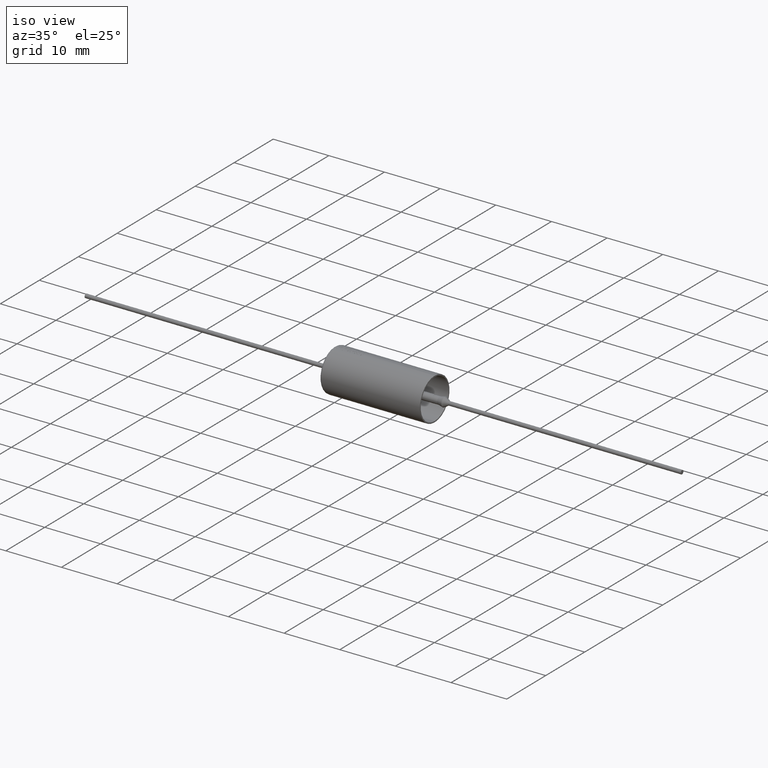
[diagram: clean part render]
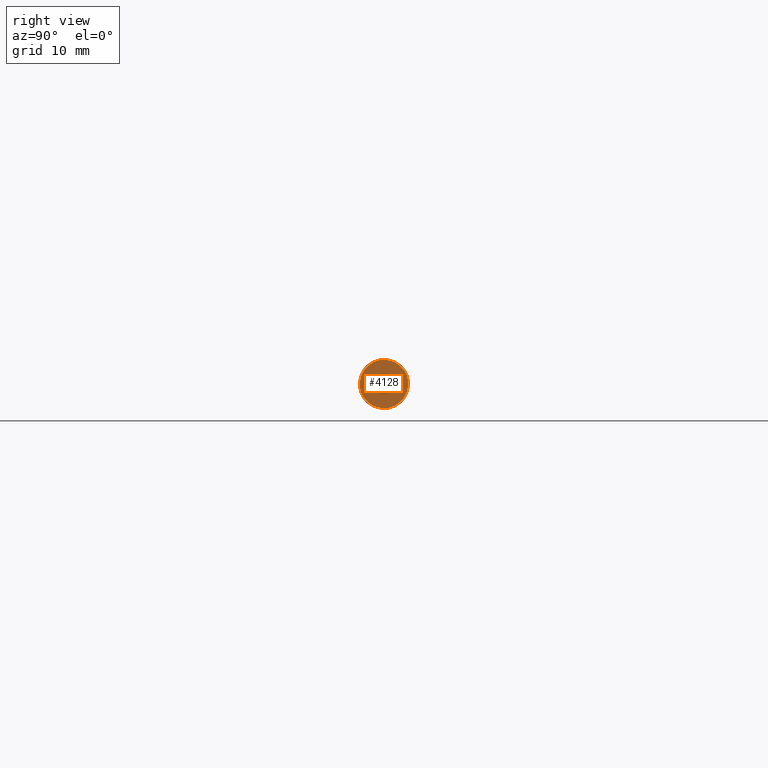
[diagram: tour spotlight — one face highlighted and labeled with its STEP entity id]
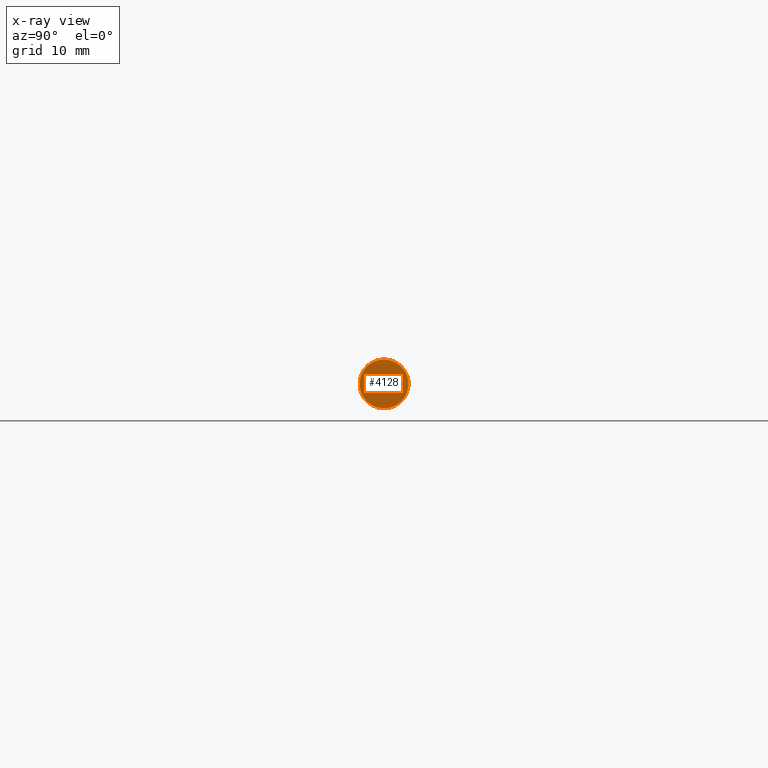
[diagram: x-ray of the same camera — body ghosted, this tour face saturated]
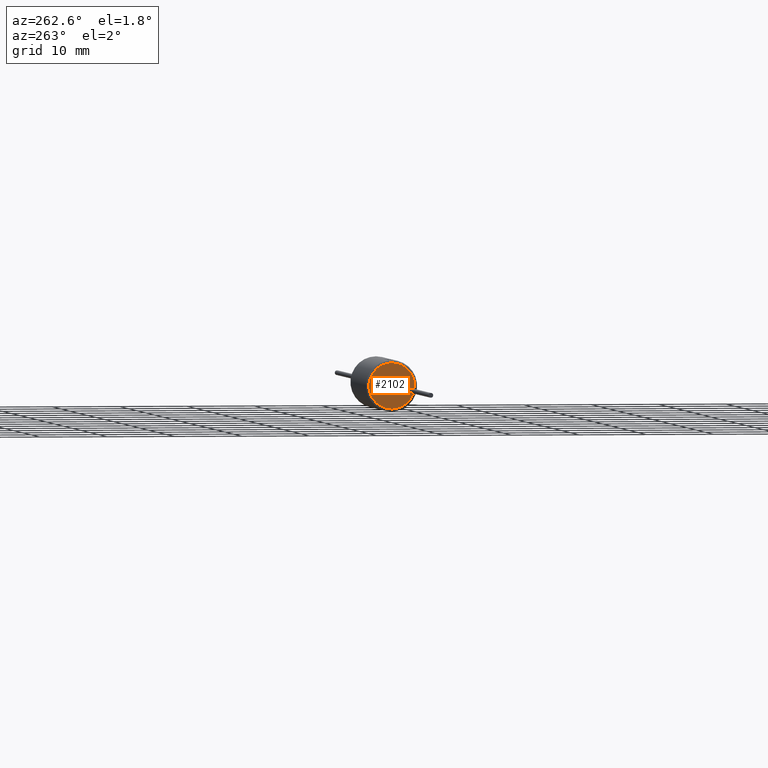
[diagram: tour spotlight — one face highlighted and labeled with its STEP entity id]
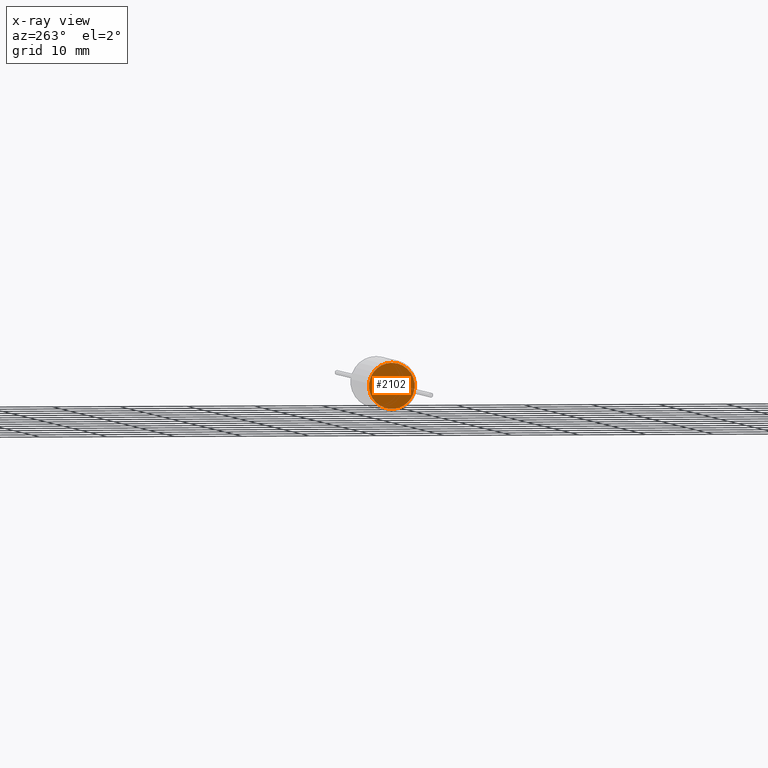
[diagram: x-ray of the same camera — body ghosted, this tour face saturated]
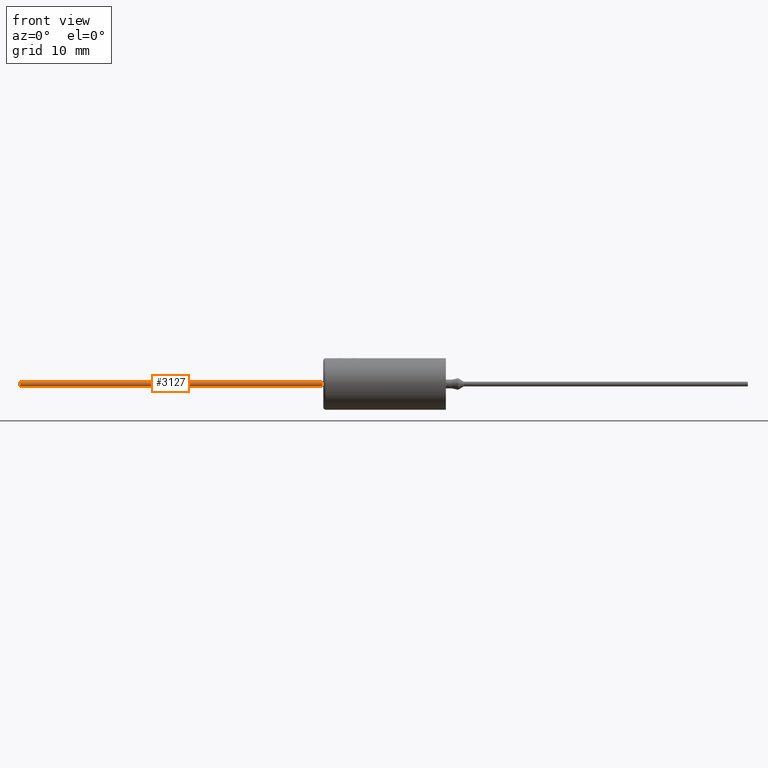
[diagram: tour spotlight — one face highlighted and labeled with its STEP entity id]
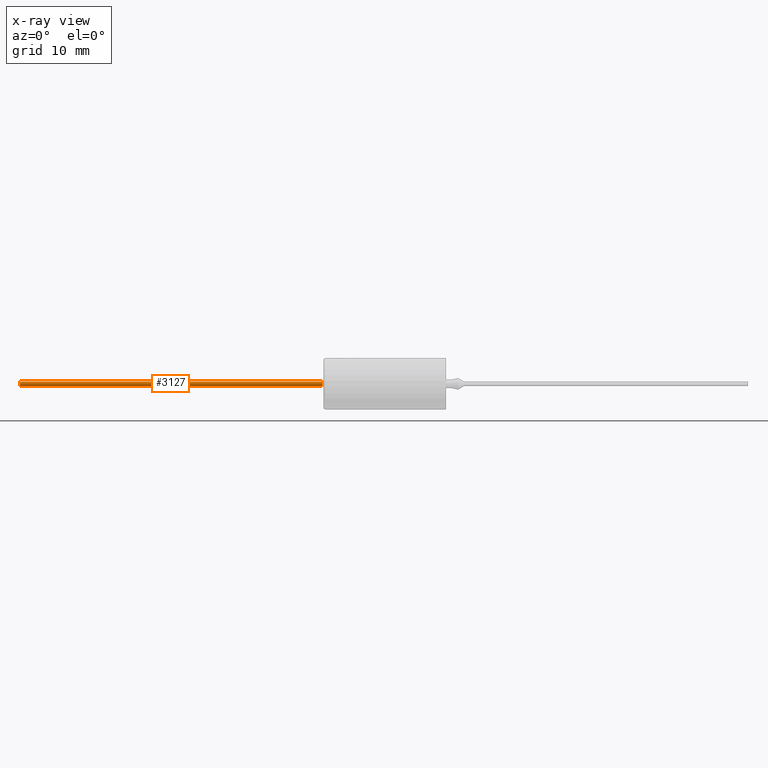
[diagram: x-ray of the same camera — body ghosted, this tour face saturated]
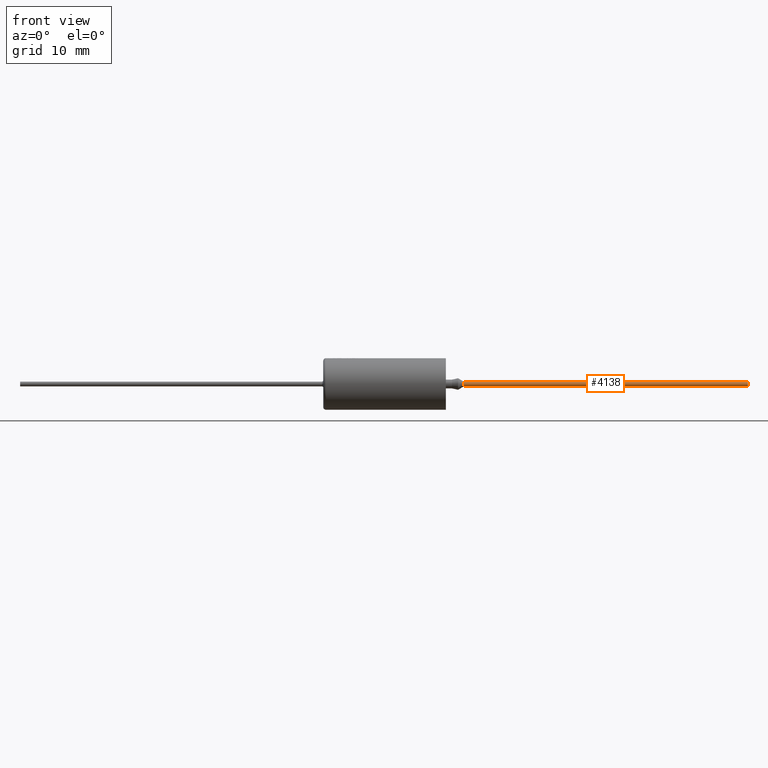
[diagram: tour spotlight — one face highlighted and labeled with its STEP entity id]
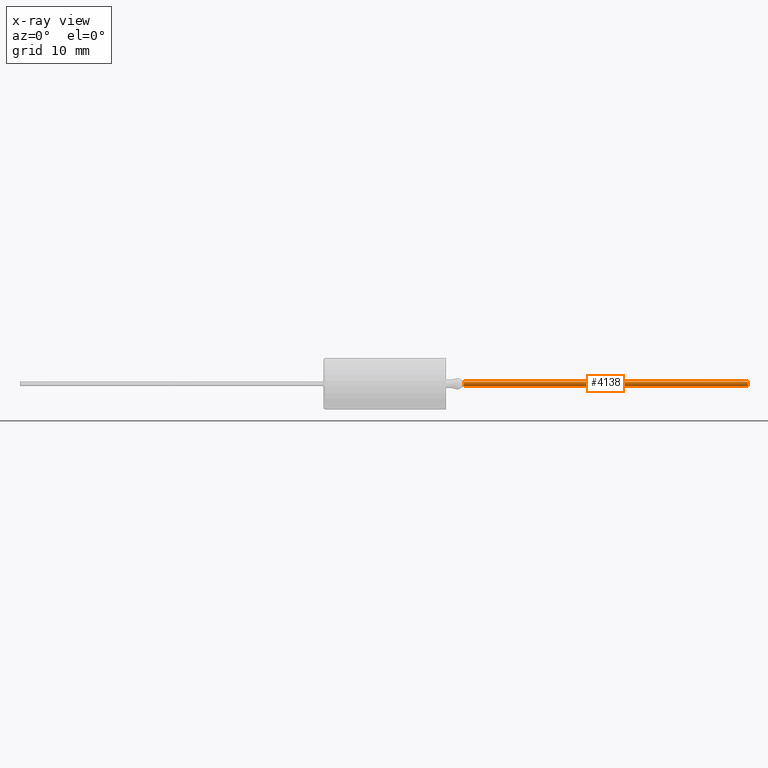
[diagram: x-ray of the same camera — body ghosted, this tour face saturated]
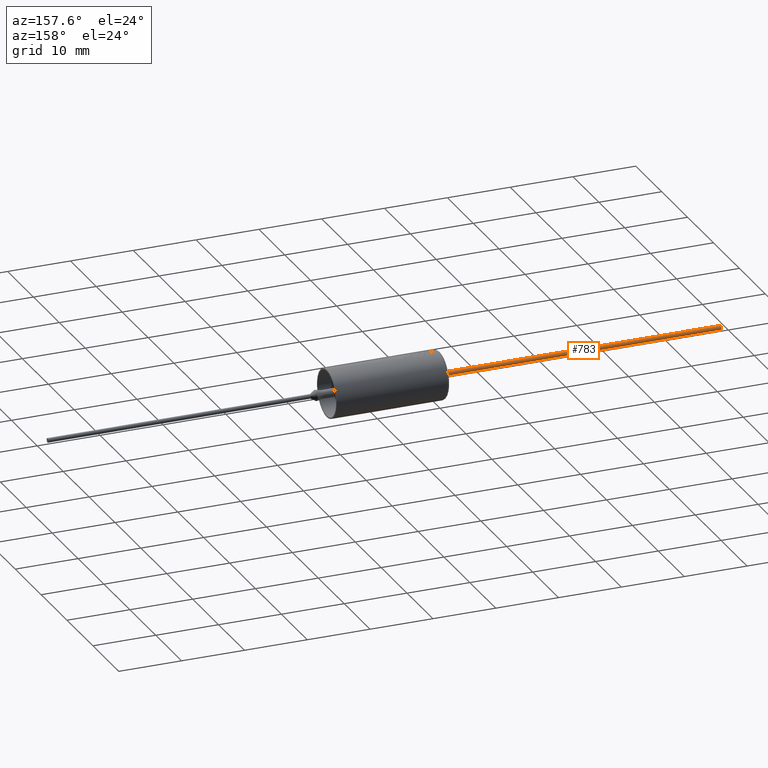
[diagram: tour spotlight — one face highlighted and labeled with its STEP entity id]
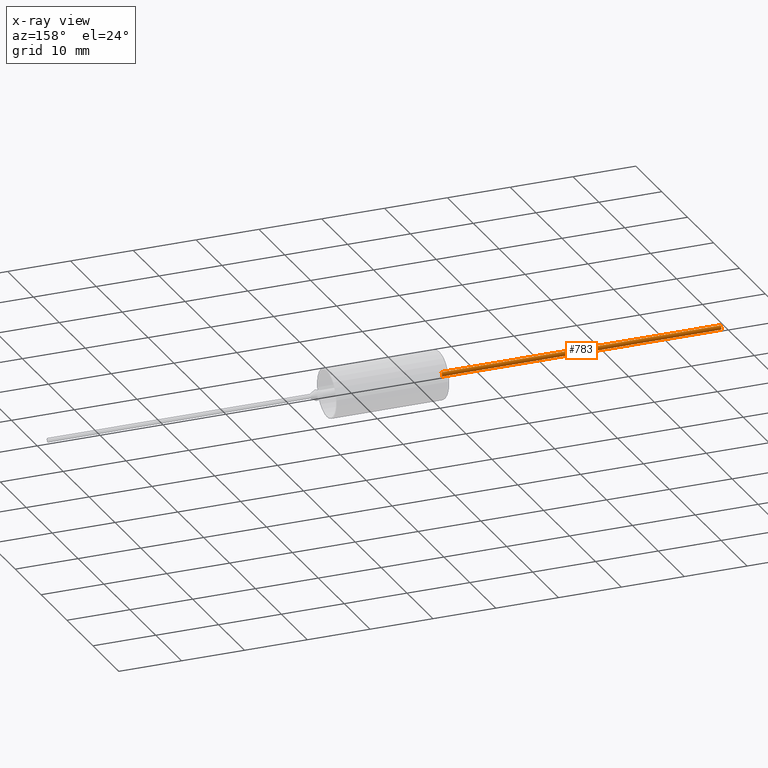
[diagram: x-ray of the same camera — body ghosted, this tour face saturated]
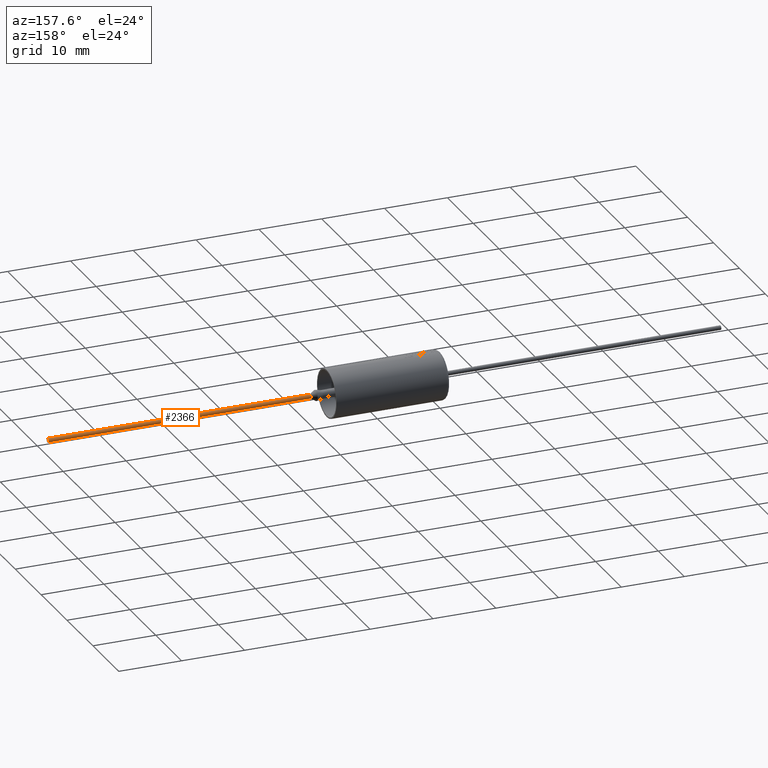
[diagram: tour spotlight — one face highlighted and labeled with its STEP entity id]
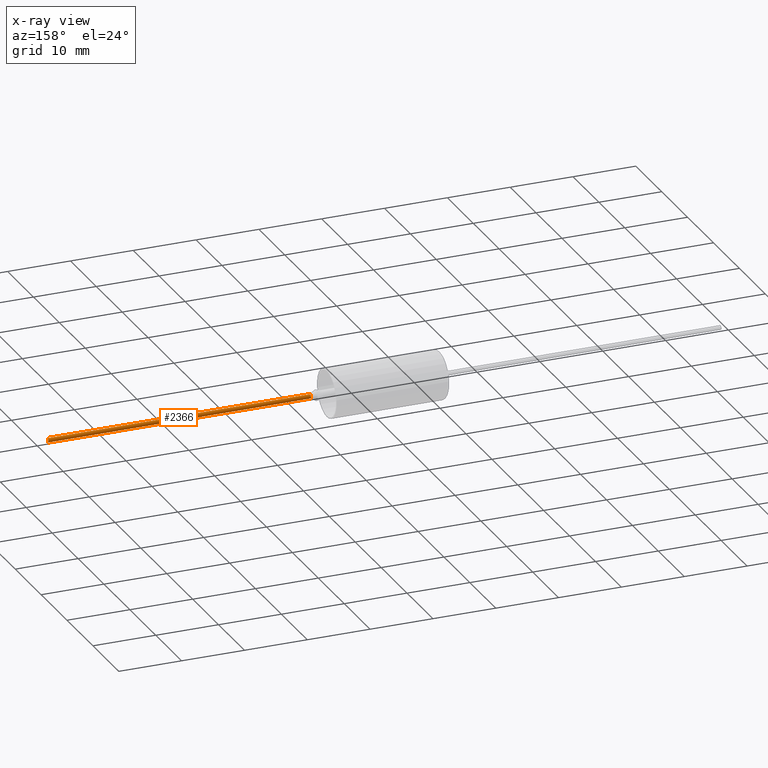
[diagram: x-ray of the same camera — body ghosted, this tour face saturated]
A machine part: a face-by-face anatomy tour. The part has 98 B-rep faces; the first image is the clean iso view, then the 6 largest visible faces are spotlighted one at a time (largest first), each with its STEP entity span.

Face 1 — right view, entity #4128. An x-ray twin of the same camera follows (body ghosted, this face saturated) — the face is partly hidden behind the body. In plain terms, the highlighted planar face has unit normal (1, 0, 0).
Definition (entity closure, byte-faithful):
#71 = CARTESIAN_POINT ( 'NONE',  ( 13.52392000000000000, 4.402605242934734800E-016, 3.595000000000000200 ) ) ;
#210 = CIRCLE ( 'NONE', #1537, 0.6636826566193314600 ) ;
#315 = ORIENTED_EDGE ( 'NONE', *, *, #3504, .T. ) ;
#333 = EDGE_LOOP ( 'NONE', ( #315, #2521 ) ) ;
#522 = VERTEX_POINT ( 'NONE', #1543 ) ;
#839 = VERTEX_POINT ( 'NONE', #2872 ) ;
#1082 = ORIENTED_EDGE ( 'NONE', *, *, #2369, .F. ) ;
#1336 = VERTEX_POINT ( 'NONE', #71 ) ;
#1338 = DIRECTION ( 'NONE',  ( 1.000000000000000000, 0.0000000000000000000, 0.0000000000000000000 ) ) ;
#1353 = DIRECTION ( 'NONE',  ( 0.0000000000000000000, 0.0000000000000000000, -1.000000000000000000 ) ) ;
#1365 = DIRECTION ( 'NONE',  ( 0.0000000000000000000, 0.0000000000000000000, -1.000000000000000000 ) ) ;
#1471 = ORIENTED_EDGE ( 'NONE', *, *, #2031, .F. ) ;
#1522 = CIRCLE ( 'NONE', #3802, 0.6636826566193314600 ) ;
#1529 = DIRECTION ( 'NONE',  ( 1.000000000000000000, 0.0000000000000000000, 0.0000000000000000000 ) ) ;
#1537 = AXIS2_PLACEMENT_3D ( 'NONE', #3578, #1529, #4244 ) ;
#1543 = CARTESIAN_POINT ( 'NONE',  ( 13.52392000000000000, 0.0000000000000000000, -0.6636826566193314600 ) ) ;
#1659 = EDGE_CURVE ( 'NONE', #1336, #839, #3113, .T. ) ;
#1734 = DIRECTION ( 'NONE',  ( 1.000000000000000000, 0.0000000000000000000, 0.0000000000000000000 ) ) ;
#1752 = DIRECTION ( 'NONE',  ( 0.0000000000000000000, 0.0000000000000000000, -1.000000000000000000 ) ) ;
#1761 = AXIS2_PLACEMENT_3D ( 'NONE', #3386, #3718, #1353 ) ;
#1770 = DIRECTION ( 'NONE',  ( 0.0000000000000000000, 0.0000000000000000000, -1.000000000000000000 ) ) ;
#1982 = FACE_BOUND ( 'NONE', #4196, .T. ) ;
#2031 = EDGE_CURVE ( 'NONE', #3087, #522, #210, .T. ) ;
#2078 = FACE_OUTER_BOUND ( 'NONE', #333, .T. ) ;
#2134 = AXIS2_PLACEMENT_3D ( 'NONE', #3095, #3800, #1770 ) ;
#2369 = EDGE_CURVE ( 'NONE', #522, #3087, #1522, .T. ) ;
#2521 = ORIENTED_EDGE ( 'NONE', *, *, #1659, .T. ) ;
#2872 = CARTESIAN_POINT ( 'NONE',  ( 13.52392000000000000, 0.0000000000000000000, -3.595000000000000200 ) ) ;
#3087 = VERTEX_POINT ( 'NONE', #3385 ) ;
#3095 = CARTESIAN_POINT ( 'NONE',  ( 13.52392000000000000, 0.0000000000000000000, 0.0000000000000000000 ) ) ;
#3113 = CIRCLE ( 'NONE', #3855, 3.595000000000000200 ) ;
#3385 = CARTESIAN_POINT ( 'NONE',  ( 13.52392000000000000, 8.127768410784762900E-017, 0.6636826566193314600 ) ) ;
#3386 = CARTESIAN_POINT ( 'NONE',  ( 13.52392000000000000, 0.0000000000000000000, 0.0000000000000000000 ) ) ;
#3504 = EDGE_CURVE ( 'NONE', #839, #1336, #3787, .T. ) ;
#3578 = CARTESIAN_POINT ( 'NONE',  ( 13.52392000000000000, 0.0000000000000000000, 0.0000000000000000000 ) ) ;
#3718 = DIRECTION ( 'NONE',  ( 1.000000000000000000, 0.0000000000000000000, 0.0000000000000000000 ) ) ;
#3757 = PLANE ( 'NONE',  #2134 ) ;
#3765 = CARTESIAN_POINT ( 'NONE',  ( 13.52392000000000000, 0.0000000000000000000, 0.0000000000000000000 ) ) ;
#3787 = CIRCLE ( 'NONE', #1761, 3.595000000000000200 ) ;
#3800 = DIRECTION ( 'NONE',  ( 1.000000000000000000, 0.0000000000000000000, 0.0000000000000000000 ) ) ;
#3802 = AXIS2_PLACEMENT_3D ( 'NONE', #3765, #1734, #1752 ) ;
#3855 = AXIS2_PLACEMENT_3D ( 'NONE', #4014, #1338, #1365 ) ;
#4014 = CARTESIAN_POINT ( 'NONE',  ( 13.52392000000000000, 0.0000000000000000000, 0.0000000000000000000 ) ) ;
#4128 = ADVANCED_FACE ( 'NONE', ( #1982, #2078 ), #3757, .T. ) ;
#4196 = EDGE_LOOP ( 'NONE', ( #1082, #1471 ) ) ;
#4244 = DIRECTION ( 'NONE',  ( 0.0000000000000000000, 0.0000000000000000000, -1.000000000000000000 ) ) ;

Face 2 — auxiliary view, entity #2102. An x-ray twin of the same camera follows (body ghosted, this face saturated) — the face is partly hidden behind the body. In plain terms, the highlighted planar face has unit normal (1, 0, 0).
Definition (entity closure, byte-faithful):
#188 = CARTESIAN_POINT ( 'NONE',  ( 0.0000000000000000000, 0.0000000000000000000, -0.4732882800593795600 ) ) ;
#425 = CARTESIAN_POINT ( 'NONE',  ( 0.0000000000000000000, 5.796109772486752100E-017, 0.4732882800593795600 ) ) ;
#555 = PLANE ( 'NONE',  #1245 ) ;
#774 = CIRCLE ( 'NONE', #4073, 3.395000000000000000 ) ;
#853 = CIRCLE ( 'NONE', #3994, 0.4732882800593795600 ) ;
#901 = EDGE_CURVE ( 'NONE', #3322, #2217, #853, .T. ) ;
#1165 = CARTESIAN_POINT ( 'NONE',  ( 0.0000000000000000000, 0.0000000000000000000, 0.0000000000000000000 ) ) ;
#1233 = DIRECTION ( 'NONE',  ( 0.0000000000000000000, 0.0000000000000000000, 1.000000000000000000 ) ) ;
#1245 = AXIS2_PLACEMENT_3D ( 'NONE', #2242, #3990, #1966 ) ;
#1327 = DIRECTION ( 'NONE',  ( 0.0000000000000000000, 0.0000000000000000000, 1.000000000000000000 ) ) ;
#1369 = CIRCLE ( 'NONE', #1590, 3.395000000000000000 ) ;
#1445 = DIRECTION ( 'NONE',  ( 0.0000000000000000000, 0.0000000000000000000, -1.000000000000000000 ) ) ;
#1455 = EDGE_CURVE ( 'NONE', #2217, #3322, #2639, .T. ) ;
#1459 = DIRECTION ( 'NONE',  ( 0.0000000000000000000, 0.0000000000000000000, -1.000000000000000000 ) ) ;
#1562 = CARTESIAN_POINT ( 'NONE',  ( 0.0000000000000000000, 4.402605242934734800E-016, 3.395000000000000000 ) ) ;
#1590 = AXIS2_PLACEMENT_3D ( 'NONE', #3529, #4209, #1459 ) ;
#1888 = FACE_BOUND ( 'NONE', #4150, .T. ) ;
#1895 = CARTESIAN_POINT ( 'NONE',  ( 0.0000000000000000000, 0.0000000000000000000, 0.0000000000000000000 ) ) ;
#1964 = ORIENTED_EDGE ( 'NONE', *, *, #2560, .T. ) ;
#1966 = DIRECTION ( 'NONE',  ( 0.0000000000000000000, 0.0000000000000000000, -1.000000000000000000 ) ) ;
#1983 = DIRECTION ( 'NONE',  ( -1.000000000000000000, -0.0000000000000000000, -0.0000000000000000000 ) ) ;
#2102 = ADVANCED_FACE ( 'NONE', ( #3160, #1888 ), #555, .F. ) ;
#2217 = VERTEX_POINT ( 'NONE', #188 ) ;
#2242 = CARTESIAN_POINT ( 'NONE',  ( 0.0000000000000000000, 0.0000000000000000000, 0.0000000000000000000 ) ) ;
#2372 = CARTESIAN_POINT ( 'NONE',  ( 0.0000000000000000000, 0.0000000000000000000, -3.395000000000000000 ) ) ;
#2560 = EDGE_CURVE ( 'NONE', #4003, #3912, #774, .T. ) ;
#2639 = CIRCLE ( 'NONE', #4384, 0.4732882800593795600 ) ;
#2673 = ORIENTED_EDGE ( 'NONE', *, *, #1455, .F. ) ;
#2849 = DIRECTION ( 'NONE',  ( -1.000000000000000000, -0.0000000000000000000, -0.0000000000000000000 ) ) ;
#2888 = DIRECTION ( 'NONE',  ( -1.000000000000000000, -0.0000000000000000000, -0.0000000000000000000 ) ) ;
#3160 = FACE_OUTER_BOUND ( 'NONE', #4213, .T. ) ;
#3205 = CARTESIAN_POINT ( 'NONE',  ( 0.0000000000000000000, 0.0000000000000000000, 0.0000000000000000000 ) ) ;
#3322 = VERTEX_POINT ( 'NONE', #425 ) ;
#3490 = ORIENTED_EDGE ( 'NONE', *, *, #901, .F. ) ;
#3529 = CARTESIAN_POINT ( 'NONE',  ( 0.0000000000000000000, 0.0000000000000000000, 0.0000000000000000000 ) ) ;
#3768 = ORIENTED_EDGE ( 'NONE', *, *, #4314, .T. ) ;
#3912 = VERTEX_POINT ( 'NONE', #1562 ) ;
#3990 = DIRECTION ( 'NONE',  ( 1.000000000000000000, 0.0000000000000000000, 0.0000000000000000000 ) ) ;
#3994 = AXIS2_PLACEMENT_3D ( 'NONE', #1895, #2888, #1233 ) ;
#4003 = VERTEX_POINT ( 'NONE', #2372 ) ;
#4073 = AXIS2_PLACEMENT_3D ( 'NONE', #1165, #2849, #1445 ) ;
#4150 = EDGE_LOOP ( 'NONE', ( #2673, #3490 ) ) ;
#4209 = DIRECTION ( 'NONE',  ( -1.000000000000000000, -0.0000000000000000000, -0.0000000000000000000 ) ) ;
#4213 = EDGE_LOOP ( 'NONE', ( #1964, #3768 ) ) ;
#4314 = EDGE_CURVE ( 'NONE', #3912, #4003, #1369, .T. ) ;
#4384 = AXIS2_PLACEMENT_3D ( 'NONE', #3205, #1983, #1327 ) ;

Face 3 — front view, entity #3127. An x-ray twin of the same camera follows (body ghosted, this face saturated) — the face is partly hidden behind the body. In plain terms, the highlighted cylindrical surface (edge-blend (fillet) strip) has radius 0.345 mm, axis along (1, -0, -0).
Definition (entity closure, byte-faithful):
#53 = CYLINDRICAL_SURFACE ( 'NONE', #1789, 0.3450000000000000300 ) ;
#55 = EDGE_LOOP ( 'NONE', ( #1200, #790, #236, #1115 ) ) ;
#158 = CARTESIAN_POINT ( 'NONE',  ( -0.1699999999999965400, -0.3450000000000000300, 0.09032078879070661000 ) ) ;
#168 = DIRECTION ( 'NONE',  ( 0.0000000000000000000, 0.0000000000000000000, 1.000000000000000000 ) ) ;
#186 = DIRECTION ( 'NONE',  ( -1.000000000000000000, 0.0000000000000000000, 0.0000000000000000000 ) ) ;
#236 = ORIENTED_EDGE ( 'NONE', *, *, #1684, .T. ) ;
#323 = VERTEX_POINT ( 'NONE', #2929 ) ;
#326 = DIRECTION ( 'NONE',  ( 1.000000000000000000, -0.0000000000000000000, -0.0000000000000000000 ) ) ;
#340 = VERTEX_POINT ( 'NONE', #3608 ) ;
#431 = EDGE_CURVE ( 'NONE', #3312, #323, #1015, .T. ) ;
#584 = FACE_OUTER_BOUND ( 'NONE', #55, .T. ) ;
#787 = EDGE_CURVE ( 'NONE', #340, #3909, #3988, .T. ) ;
#790 = ORIENTED_EDGE ( 'NONE', *, *, #431, .F. ) ;
#846 = CARTESIAN_POINT ( 'NONE',  ( -0.1699999999999965200, -0.1800853972733324800, -0.3078182817453854500 ) ) ;
#860 = AXIS2_PLACEMENT_3D ( 'NONE', #2895, #186, #168 ) ;
#1015 = CIRCLE ( 'NONE', #860, 0.3450000000000000300 ) ;
#1026 = CARTESIAN_POINT ( 'NONE',  ( -44.61999999999999700, 4.225031457058369100E-017, 0.3450000000000000300 ) ) ;
#1115 = ORIENTED_EDGE ( 'NONE', *, *, #787, .T. ) ;
#1174 = CARTESIAN_POINT ( 'NONE',  ( -0.1699999999999982600, 8.480679084095421300E-017, 0.3475000000000000300 ) ) ;
#1200 = ORIENTED_EDGE ( 'NONE', *, *, #3091, .F. ) ;
#1322 = LINE ( 'NONE', #2326, #4019 ) ;
#1501 = CARTESIAN_POINT ( 'NONE',  ( -0.1699999999999965400, -0.3078182817453855600, 0.1800853972733324800 ) ) ;
#1684 = EDGE_CURVE ( 'NONE', #3312, #340, #1322, .T. ) ;
#1722 = CARTESIAN_POINT ( 'NONE',  ( -44.61999999999999700, 0.0000000000000000000, -0.3450000000000000300 ) ) ;
#1789 = AXIS2_PLACEMENT_3D ( 'NONE', #2050, #3047, #3065 ) ;
#1813 = CARTESIAN_POINT ( 'NONE',  ( -0.1699999999999982600, 1.469199281934478100E-015, -0.3475000000000000300 ) ) ;
#2027 = DIRECTION ( 'NONE',  ( 1.000000000000000000, -0.0000000000000000000, -0.0000000000000000000 ) ) ;
#2050 = CARTESIAN_POINT ( 'NONE',  ( -44.61999999999999700, 0.0000000000000000000, 0.0000000000000000000 ) ) ;
#2147 = CARTESIAN_POINT ( 'NONE',  ( -0.1699999999999965400, -0.3078182817453853900, -0.1800853972733323600 ) ) ;
#2163 = CARTESIAN_POINT ( 'NONE',  ( -0.1699999999999965200, -0.3449999999999999700, -0.09032078879070649900 ) ) ;
#2326 = CARTESIAN_POINT ( 'NONE',  ( -44.61999999999999700, 0.0000000000000000000, -0.3450000000000000300 ) ) ;
#2620 = CARTESIAN_POINT ( 'NONE',  ( -0.1699999999999982600, 8.480679084095421300E-017, 0.3475000000000000300 ) ) ;
#2895 = CARTESIAN_POINT ( 'NONE',  ( -44.61999999999999700, 0.0000000000000000000, 0.0000000000000000000 ) ) ;
#2929 = CARTESIAN_POINT ( 'NONE',  ( -44.61999999999999700, 4.225031457058369100E-017, 0.3450000000000000300 ) ) ;
#2957 = VECTOR ( 'NONE', #2027, 1000.000000000000000 ) ;
#3047 = DIRECTION ( 'NONE',  ( 1.000000000000000000, -0.0000000000000000000, -0.0000000000000000000 ) ) ;
#3065 = DIRECTION ( 'NONE',  ( 0.0000000000000000000, 0.0000000000000000000, -1.000000000000000000 ) ) ;
#3091 = EDGE_CURVE ( 'NONE', #323, #3909, #3659, .T. ) ;
#3127 = ADVANCED_FACE ( 'NONE', ( #584 ), #53, .T. ) ;
#3200 = CARTESIAN_POINT ( 'NONE',  ( -0.1699999999999965400, -0.1800853972733323900, 0.3078182817453854500 ) ) ;
#3312 = VERTEX_POINT ( 'NONE', #1722 ) ;
#3608 = CARTESIAN_POINT ( 'NONE',  ( -0.1699999999999982600, 1.469199281934478100E-015, -0.3475000000000000300 ) ) ;
#3659 = LINE ( 'NONE', #1026, #2957 ) ;
#3873 = CARTESIAN_POINT ( 'NONE',  ( -0.1699999999999964900, -0.09032078879070643000, 0.3450000000000000300 ) ) ;
#3909 = VERTEX_POINT ( 'NONE', #2620 ) ;
#3988 = B_SPLINE_CURVE_WITH_KNOTS ( 'NONE', 3,
 ( #1813, #4171, #846, #2147, #2163, #158, #1501, #3200, #3873, #1174 ),
 .UNSPECIFIED., .F., .F.,
 ( 4, 2, 2, 2, 4 ),
 ( 0.5000000000000000000, 0.6250000000000000000, 0.7500000000000000000, 0.8750000000000000000, 1.000000000000000000 ),
 .UNSPECIFIED. ) ;
#4019 = VECTOR ( 'NONE', #326, 1000.000000000000000 ) ;
#4171 = CARTESIAN_POINT ( 'NONE',  ( -0.1699999999999965400, -0.09032078879070666600, -0.3450000000000000800 ) ) ;

Face 4 — front view, entity #4138. An x-ray twin of the same camera follows (body ghosted, this face saturated) — the face is partly hidden behind the body. In plain terms, the highlighted cylindrical surface (edge-blend (fillet) strip) has radius 0.345 mm, axis along (-1, -0, -0).
Definition (entity closure, byte-faithful):
#80 = CARTESIAN_POINT ( 'NONE',  ( 62.48999999999999500, 0.0000000000000000000, 0.0000000000000000000 ) ) ;
#90 = CARTESIAN_POINT ( 'NONE',  ( 62.48999999999999500, 4.225031457058369100E-017, -0.3450000000000000300 ) ) ;
#160 = VERTEX_POINT ( 'NONE', #90 ) ;
#463 = EDGE_CURVE ( 'NONE', #1409, #160, #1376, .T. ) ;
#530 = DIRECTION ( 'NONE',  ( 0.0000000000000000000, 0.0000000000000000000, -1.000000000000000000 ) ) ;
#620 = EDGE_CURVE ( 'NONE', #160, #667, #1484, .T. ) ;
#667 = VERTEX_POINT ( 'NONE', #4280 ) ;
#689 = CARTESIAN_POINT ( 'NONE',  ( 62.48999999999999500, 0.0000000000000000000, 0.3450000000000000300 ) ) ;
#694 = CARTESIAN_POINT ( 'NONE',  ( 20.71000000000000100, 0.0000000000000000000, 0.0000000000000000000 ) ) ;
#891 = EDGE_LOOP ( 'NONE', ( #1978, #1078, #3902, #2314 ) ) ;
#1078 = ORIENTED_EDGE ( 'NONE', *, *, #463, .F. ) ;
#1202 = EDGE_CURVE ( 'NONE', #1409, #2514, #1475, .T. ) ;
#1376 = CIRCLE ( 'NONE', #4157, 0.3450000000000000300 ) ;
#1409 = VERTEX_POINT ( 'NONE', #4194 ) ;
#1475 = LINE ( 'NONE', #689, #3801 ) ;
#1484 = LINE ( 'NONE', #2618, #2952 ) ;
#1906 = CARTESIAN_POINT ( 'NONE',  ( 62.48999999999999500, 0.0000000000000000000, 0.0000000000000000000 ) ) ;
#1978 = ORIENTED_EDGE ( 'NONE', *, *, #620, .F. ) ;
#2017 = DIRECTION ( 'NONE',  ( -1.000000000000000000, -0.0000000000000000000, -0.0000000000000000000 ) ) ;
#2314 = ORIENTED_EDGE ( 'NONE', *, *, #3615, .T. ) ;
#2514 = VERTEX_POINT ( 'NONE', #2520 ) ;
#2520 = CARTESIAN_POINT ( 'NONE',  ( 20.71000000000000100, 0.0000000000000000000, 0.3450000000000000300 ) ) ;
#2618 = CARTESIAN_POINT ( 'NONE',  ( 62.48999999999999500, 4.225031457058369100E-017, -0.3450000000000000300 ) ) ;
#2725 = DIRECTION ( 'NONE',  ( 0.0000000000000000000, 0.0000000000000000000, 1.000000000000000000 ) ) ;
#2859 = FACE_OUTER_BOUND ( 'NONE', #891, .T. ) ;
#2952 = VECTOR ( 'NONE', #4326, 1000.000000000000000 ) ;
#3086 = AXIS2_PLACEMENT_3D ( 'NONE', #80, #3410, #2725 ) ;
#3103 = DIRECTION ( 'NONE',  ( 1.000000000000000000, 0.0000000000000000000, 0.0000000000000000000 ) ) ;
#3374 = DIRECTION ( 'NONE',  ( 0.0000000000000000000, 0.0000000000000000000, -1.000000000000000000 ) ) ;
#3410 = DIRECTION ( 'NONE',  ( -1.000000000000000000, -0.0000000000000000000, -0.0000000000000000000 ) ) ;
#3572 = CIRCLE ( 'NONE', #3573, 0.3450000000000000300 ) ;
#3573 = AXIS2_PLACEMENT_3D ( 'NONE', #694, #3103, #3374 ) ;
#3615 = EDGE_CURVE ( 'NONE', #2514, #667, #3572, .T. ) ;
#3752 = CYLINDRICAL_SURFACE ( 'NONE', #3086, 0.3450000000000000300 ) ;
#3801 = VECTOR ( 'NONE', #2017, 1000.000000000000000 ) ;
#3902 = ORIENTED_EDGE ( 'NONE', *, *, #1202, .T. ) ;
#4138 = ADVANCED_FACE ( 'NONE', ( #2859 ), #3752, .T. ) ;
#4157 = AXIS2_PLACEMENT_3D ( 'NONE', #1906, #4266, #530 ) ;
#4194 = CARTESIAN_POINT ( 'NONE',  ( 62.48999999999999500, 0.0000000000000000000, 0.3450000000000000300 ) ) ;
#4266 = DIRECTION ( 'NONE',  ( 1.000000000000000000, 0.0000000000000000000, 0.0000000000000000000 ) ) ;
#4280 = CARTESIAN_POINT ( 'NONE',  ( 20.71000000000000100, 4.225031457058369100E-017, -0.3450000000000000300 ) ) ;
#4326 = DIRECTION ( 'NONE',  ( -1.000000000000000000, -0.0000000000000000000, -0.0000000000000000000 ) ) ;

Face 5 — auxiliary view, entity #783. An x-ray twin of the same camera follows (body ghosted, this face saturated) — the face is partly hidden behind the body. In plain terms, the highlighted cylindrical surface (edge-blend (fillet) strip) has radius 0.345 mm, axis along (1, -0, -0).
Definition (entity closure, byte-faithful):
#42 = DIRECTION ( 'NONE',  ( -1.000000000000000000, 0.0000000000000000000, 0.0000000000000000000 ) ) ;
#303 = CIRCLE ( 'NONE', #748, 0.3450000000000000300 ) ;
#323 = VERTEX_POINT ( 'NONE', #2929 ) ;
#326 = DIRECTION ( 'NONE',  ( 1.000000000000000000, -0.0000000000000000000, -0.0000000000000000000 ) ) ;
#340 = VERTEX_POINT ( 'NONE', #3608 ) ;
#600 = B_SPLINE_CURVE_WITH_KNOTS ( 'NONE', 3,
 ( #2494, #2803, #1765, #3818, #1091, #1436, #1776, #2135, #4137, #2467 ),
 .UNSPECIFIED., .F., .F.,
 ( 4, 2, 2, 2, 4 ),
 ( 0.0000000000000000000, 0.1250000000000000300, 0.2500000000000000000, 0.3750000000000000000, 0.5000000000000000000 ),
 .UNSPECIFIED. ) ;
#723 = DIRECTION ( 'NONE',  ( 0.0000000000000000000, 0.0000000000000000000, 1.000000000000000000 ) ) ;
#748 = AXIS2_PLACEMENT_3D ( 'NONE', #4088, #42, #723 ) ;
#762 = ORIENTED_EDGE ( 'NONE', *, *, #1176, .F. ) ;
#783 = ADVANCED_FACE ( 'NONE', ( #4173 ), #3755, .T. ) ;
#1026 = CARTESIAN_POINT ( 'NONE',  ( -44.61999999999999700, 4.225031457058369100E-017, 0.3450000000000000300 ) ) ;
#1046 = AXIS2_PLACEMENT_3D ( 'NONE', #3182, #3835, #1153 ) ;
#1091 = CARTESIAN_POINT ( 'NONE',  ( -0.1699999999999965400, 0.3450000000000000300, 0.09032078879070649900 ) ) ;
#1153 = DIRECTION ( 'NONE',  ( 0.0000000000000000000, 0.0000000000000000000, -1.000000000000000000 ) ) ;
#1176 = EDGE_CURVE ( 'NONE', #323, #3312, #303, .T. ) ;
#1322 = LINE ( 'NONE', #2326, #4019 ) ;
#1436 = CARTESIAN_POINT ( 'NONE',  ( -0.1699999999999965700, 0.3450000000000000800, -0.09032078879070665200 ) ) ;
#1644 = ORIENTED_EDGE ( 'NONE', *, *, #1684, .F. ) ;
#1684 = EDGE_CURVE ( 'NONE', #3312, #340, #1322, .T. ) ;
#1722 = CARTESIAN_POINT ( 'NONE',  ( -44.61999999999999700, 0.0000000000000000000, -0.3450000000000000300 ) ) ;
#1765 = CARTESIAN_POINT ( 'NONE',  ( -0.1699999999999965700, 0.1800853972733322300, 0.3078182817453856700 ) ) ;
#1776 = CARTESIAN_POINT ( 'NONE',  ( -0.1699999999999965400, 0.3078182817453852800, -0.1800853972733328100 ) ) ;
#2027 = DIRECTION ( 'NONE',  ( 1.000000000000000000, -0.0000000000000000000, -0.0000000000000000000 ) ) ;
#2135 = CARTESIAN_POINT ( 'NONE',  ( -0.1699999999999965400, 0.1800853972733320000, -0.3078182817453857200 ) ) ;
#2326 = CARTESIAN_POINT ( 'NONE',  ( -44.61999999999999700, 0.0000000000000000000, -0.3450000000000000300 ) ) ;
#2467 = CARTESIAN_POINT ( 'NONE',  ( -0.1699999999999982600, 1.469199281934478100E-015, -0.3475000000000000300 ) ) ;
#2494 = CARTESIAN_POINT ( 'NONE',  ( -0.1699999999999982600, 8.480679084095421300E-017, 0.3475000000000000300 ) ) ;
#2620 = CARTESIAN_POINT ( 'NONE',  ( -0.1699999999999982600, 8.480679084095421300E-017, 0.3475000000000000300 ) ) ;
#2803 = CARTESIAN_POINT ( 'NONE',  ( -0.1699999999999966000, 0.09032078879070669400, 0.3450000000000000800 ) ) ;
#2929 = CARTESIAN_POINT ( 'NONE',  ( -44.61999999999999700, 4.225031457058369100E-017, 0.3450000000000000300 ) ) ;
#2957 = VECTOR ( 'NONE', #2027, 1000.000000000000000 ) ;
#3091 = EDGE_CURVE ( 'NONE', #323, #3909, #3659, .T. ) ;
#3182 = CARTESIAN_POINT ( 'NONE',  ( -44.61999999999999700, 0.0000000000000000000, 0.0000000000000000000 ) ) ;
#3211 = EDGE_LOOP ( 'NONE', ( #762, #3429, #3727, #1644 ) ) ;
#3312 = VERTEX_POINT ( 'NONE', #1722 ) ;
#3429 = ORIENTED_EDGE ( 'NONE', *, *, #3091, .T. ) ;
#3608 = CARTESIAN_POINT ( 'NONE',  ( -0.1699999999999982600, 1.469199281934478100E-015, -0.3475000000000000300 ) ) ;
#3659 = LINE ( 'NONE', #1026, #2957 ) ;
#3727 = ORIENTED_EDGE ( 'NONE', *, *, #3758, .T. ) ;
#3755 = CYLINDRICAL_SURFACE ( 'NONE', #1046, 0.3450000000000000300 ) ;
#3758 = EDGE_CURVE ( 'NONE', #3909, #340, #600, .T. ) ;
#3818 = CARTESIAN_POINT ( 'NONE',  ( -0.1699999999999965200, 0.3078182817453852800, 0.1800853972733325900 ) ) ;
#3835 = DIRECTION ( 'NONE',  ( 1.000000000000000000, -0.0000000000000000000, -0.0000000000000000000 ) ) ;
#3909 = VERTEX_POINT ( 'NONE', #2620 ) ;
#4019 = VECTOR ( 'NONE', #326, 1000.000000000000000 ) ;
#4088 = CARTESIAN_POINT ( 'NONE',  ( -44.61999999999999700, 0.0000000000000000000, 0.0000000000000000000 ) ) ;
#4137 = CARTESIAN_POINT ( 'NONE',  ( -0.1699999999999965700, 0.09032078879070647200, -0.3450000000000000300 ) ) ;
#4173 = FACE_OUTER_BOUND ( 'NONE', #3211, .T. ) ;

Face 6 — auxiliary view, entity #2366. An x-ray twin of the same camera follows (body ghosted, this face saturated) — the face is partly hidden behind the body. In plain terms, the highlighted cylindrical surface (edge-blend (fillet) strip) has radius 0.345 mm, axis along (-1, -0, -0).
Definition (entity closure, byte-faithful):
#90 = CARTESIAN_POINT ( 'NONE',  ( 62.48999999999999500, 4.225031457058369100E-017, -0.3450000000000000300 ) ) ;
#160 = VERTEX_POINT ( 'NONE', #90 ) ;
#366 = DIRECTION ( 'NONE',  ( -1.000000000000000000, -0.0000000000000000000, -0.0000000000000000000 ) ) ;
#573 = CARTESIAN_POINT ( 'NONE',  ( 62.48999999999999500, 0.0000000000000000000, 0.0000000000000000000 ) ) ;
#620 = EDGE_CURVE ( 'NONE', #160, #667, #1484, .T. ) ;
#647 = EDGE_CURVE ( 'NONE', #160, #1409, #2374, .T. ) ;
#667 = VERTEX_POINT ( 'NONE', #4280 ) ;
#689 = CARTESIAN_POINT ( 'NONE',  ( 62.48999999999999500, 0.0000000000000000000, 0.3450000000000000300 ) ) ;
#788 = FACE_OUTER_BOUND ( 'NONE', #1218, .T. ) ;
#1137 = ORIENTED_EDGE ( 'NONE', *, *, #1202, .F. ) ;
#1202 = EDGE_CURVE ( 'NONE', #1409, #2514, #1475, .T. ) ;
#1218 = EDGE_LOOP ( 'NONE', ( #3536, #2363, #2709, #1137 ) ) ;
#1297 = DIRECTION ( 'NONE',  ( 0.0000000000000000000, 0.0000000000000000000, -1.000000000000000000 ) ) ;
#1409 = VERTEX_POINT ( 'NONE', #4194 ) ;
#1468 = CARTESIAN_POINT ( 'NONE',  ( 20.71000000000000100, 0.0000000000000000000, 0.0000000000000000000 ) ) ;
#1475 = LINE ( 'NONE', #689, #3801 ) ;
#1484 = LINE ( 'NONE', #2618, #2952 ) ;
#1824 = DIRECTION ( 'NONE',  ( 0.0000000000000000000, 0.0000000000000000000, -1.000000000000000000 ) ) ;
#2017 = DIRECTION ( 'NONE',  ( -1.000000000000000000, -0.0000000000000000000, -0.0000000000000000000 ) ) ;
#2168 = EDGE_CURVE ( 'NONE', #667, #2514, #3371, .T. ) ;
#2245 = DIRECTION ( 'NONE',  ( 1.000000000000000000, 0.0000000000000000000, 0.0000000000000000000 ) ) ;
#2363 = ORIENTED_EDGE ( 'NONE', *, *, #620, .T. ) ;
#2366 = ADVANCED_FACE ( 'NONE', ( #788 ), #3365, .T. ) ;
#2374 = CIRCLE ( 'NONE', #3422, 0.3450000000000000300 ) ;
#2492 = AXIS2_PLACEMENT_3D ( 'NONE', #1468, #2805, #1824 ) ;
#2514 = VERTEX_POINT ( 'NONE', #2520 ) ;
#2520 = CARTESIAN_POINT ( 'NONE',  ( 20.71000000000000100, 0.0000000000000000000, 0.3450000000000000300 ) ) ;
#2618 = CARTESIAN_POINT ( 'NONE',  ( 62.48999999999999500, 4.225031457058369100E-017, -0.3450000000000000300 ) ) ;
#2709 = ORIENTED_EDGE ( 'NONE', *, *, #2168, .T. ) ;
#2805 = DIRECTION ( 'NONE',  ( 1.000000000000000000, 0.0000000000000000000, 0.0000000000000000000 ) ) ;
#2952 = VECTOR ( 'NONE', #4326, 1000.000000000000000 ) ;
#3365 = CYLINDRICAL_SURFACE ( 'NONE', #3859, 0.3450000000000000300 ) ;
#3371 = CIRCLE ( 'NONE', #2492, 0.3450000000000000300 ) ;
#3422 = AXIS2_PLACEMENT_3D ( 'NONE', #573, #2245, #1297 ) ;
#3460 = DIRECTION ( 'NONE',  ( 0.0000000000000000000, 0.0000000000000000000, 1.000000000000000000 ) ) ;
#3536 = ORIENTED_EDGE ( 'NONE', *, *, #647, .F. ) ;
#3751 = CARTESIAN_POINT ( 'NONE',  ( 62.48999999999999500, 0.0000000000000000000, 0.0000000000000000000 ) ) ;
#3801 = VECTOR ( 'NONE', #2017, 1000.000000000000000 ) ;
#3859 = AXIS2_PLACEMENT_3D ( 'NONE', #3751, #366, #3460 ) ;
#4194 = CARTESIAN_POINT ( 'NONE',  ( 62.48999999999999500, 0.0000000000000000000, 0.3450000000000000300 ) ) ;
#4280 = CARTESIAN_POINT ( 'NONE',  ( 20.71000000000000100, 4.225031457058369100E-017, -0.3450000000000000300 ) ) ;
#4326 = DIRECTION ( 'NONE',  ( -1.000000000000000000, -0.0000000000000000000, -0.0000000000000000000 ) ) ;